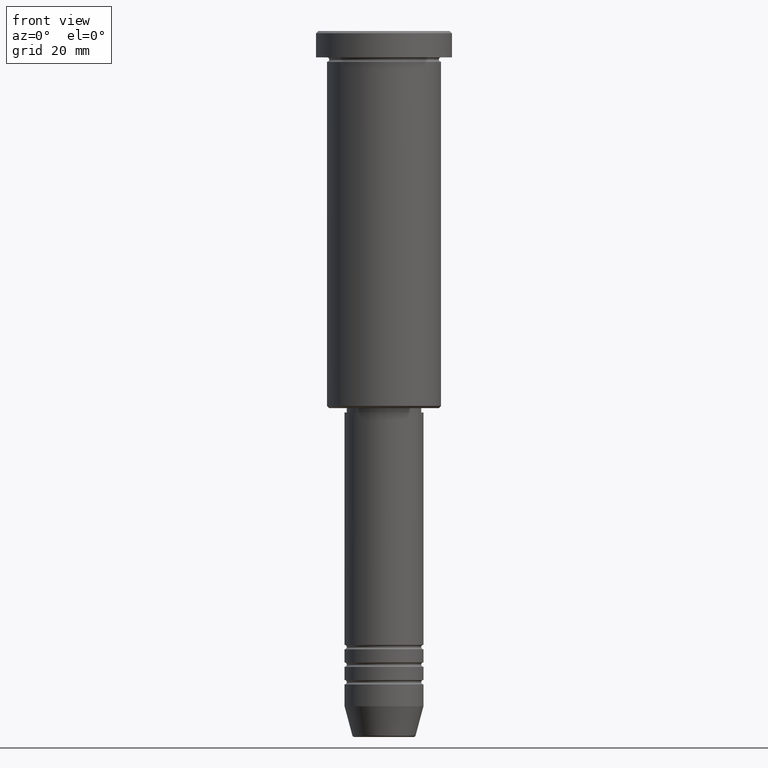
[diagram: clean part render]
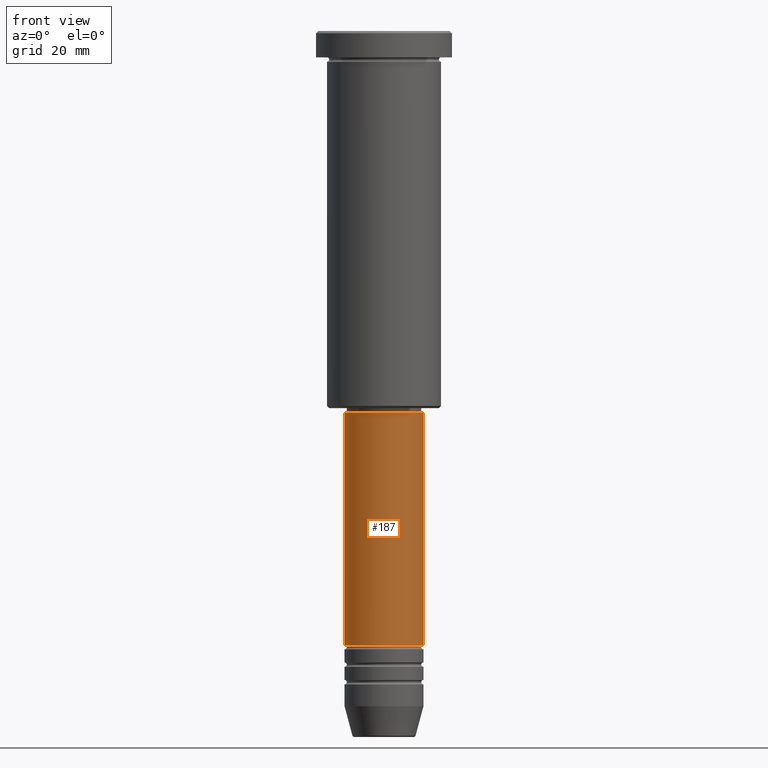
[diagram: same view with one face highlighted and labeled with its STEP entity id]
A machine part, front view. The second image highlights one B-rep face of the part: STEP entity #187.
In plain terms, the highlighted cylindrical surface (partial cylindrical patch) has radius 9 mm, axis along (-0, -0, 1).
Its self-contained STEP definition (entity closure, byte-faithful):
#51 = CIRCLE ( 'NONE', #1156, 8.999999999999998224 ) ;
#52 = VECTOR ( 'NONE', #198, 1000.000000000000000 ) ;
#58 = VERTEX_POINT ( 'NONE', #910 ) ;
#86 = CIRCLE ( 'NONE', #395, 9.000000000000001776 ) ;
#90 = VECTOR ( 'NONE', #628, 1000.000000000000000 ) ;
#128 = ORIENTED_EDGE ( 'NONE', *, *, #323, .T. ) ;
#180 = AXIS2_PLACEMENT_3D ( 'NONE', #269, #1012, #186 ) ;
#186 = DIRECTION ( 'NONE',  ( 1.000000000000000000, 0.000000000000000000, 0.000000000000000000 ) ) ;
#187 = ADVANCED_FACE ( 'NONE', ( #993 ), #1100, .T. ) ;
#198 = DIRECTION ( 'NONE',  ( -0.000000000000000000, -0.000000000000000000, 1.000000000000000000 ) ) ;
#238 = CARTESIAN_POINT ( 'NONE',  ( -8.999999999999998224, 1.102182119232617714E-15, -86.99999999999997158 ) ) ;
#249 = LINE ( 'NONE', #902, #90 ) ;
#269 = CARTESIAN_POINT ( 'NONE',  ( 0.000000000000000000, 0.000000000000000000, 0.000000000000000000 ) ) ;
#296 = CARTESIAN_POINT ( 'NONE',  ( 0.000000000000000000, 0.000000000000000000, -139.9999999999998579 ) ) ;
#323 = EDGE_CURVE ( 'NONE', #411, #58, #86, .T. ) ;
#395 = AXIS2_PLACEMENT_3D ( 'NONE', #296, #1021, #667 ) ;
#411 = VERTEX_POINT ( 'NONE', #506 ) ;
#450 = ORIENTED_EDGE ( 'NONE', *, *, #1179, .T. ) ;
#483 = CARTESIAN_POINT ( 'NONE',  ( 8.999999999999998224, 0.000000000000000000, -86.99999999999997158 ) ) ;
#506 = CARTESIAN_POINT ( 'NONE',  ( -9.000000000000001776, 1.102182119232617911E-15, -139.9999999999998579 ) ) ;
#546 = EDGE_LOOP ( 'NONE', ( #1078, #128, #450, #972 ) ) ;
#621 = DIRECTION ( 'NONE',  ( 1.000000000000000000, 0.000000000000000000, 0.000000000000000000 ) ) ;
#628 = DIRECTION ( 'NONE',  ( -0.000000000000000000, -0.000000000000000000, 1.000000000000000000 ) ) ;
#667 = DIRECTION ( 'NONE',  ( 1.000000000000000000, 0.000000000000000000, 0.000000000000000000 ) ) ;
#671 = CARTESIAN_POINT ( 'NONE',  ( 0.000000000000000000, 0.000000000000000000, -86.99999999999997158 ) ) ;
#723 = VERTEX_POINT ( 'NONE', #483 ) ;
#846 = LINE ( 'NONE', #919, #52 ) ;
#902 = CARTESIAN_POINT ( 'NONE',  ( -9.000000000000000000, 1.102182119232617714E-15, 0.000000000000000000 ) ) ;
#910 = CARTESIAN_POINT ( 'NONE',  ( 9.000000000000001776, 0.000000000000000000, -139.9999999999998579 ) ) ;
#919 = CARTESIAN_POINT ( 'NONE',  ( 9.000000000000000000, 0.000000000000000000, 0.000000000000000000 ) ) ;
#939 = EDGE_CURVE ( 'NONE', #997, #723, #51, .T. ) ;
#972 = ORIENTED_EDGE ( 'NONE', *, *, #939, .F. ) ;
#977 = DIRECTION ( 'NONE',  ( -0.000000000000000000, -0.000000000000000000, 1.000000000000000000 ) ) ;
#993 = FACE_OUTER_BOUND ( 'NONE', #546, .T. ) ;
#997 = VERTEX_POINT ( 'NONE', #238 ) ;
#1012 = DIRECTION ( 'NONE',  ( -0.000000000000000000, -0.000000000000000000, 1.000000000000000000 ) ) ;
#1021 = DIRECTION ( 'NONE',  ( -0.000000000000000000, -0.000000000000000000, 1.000000000000000000 ) ) ;
#1063 = EDGE_CURVE ( 'NONE', #411, #997, #249, .T. ) ;
#1078 = ORIENTED_EDGE ( 'NONE', *, *, #1063, .F. ) ;
#1100 = CYLINDRICAL_SURFACE ( 'NONE', #180, 9.000000000000000000 ) ;
#1156 = AXIS2_PLACEMENT_3D ( 'NONE', #671, #977, #621 ) ;
#1179 = EDGE_CURVE ( 'NONE', #58, #723, #846, .T. ) ;